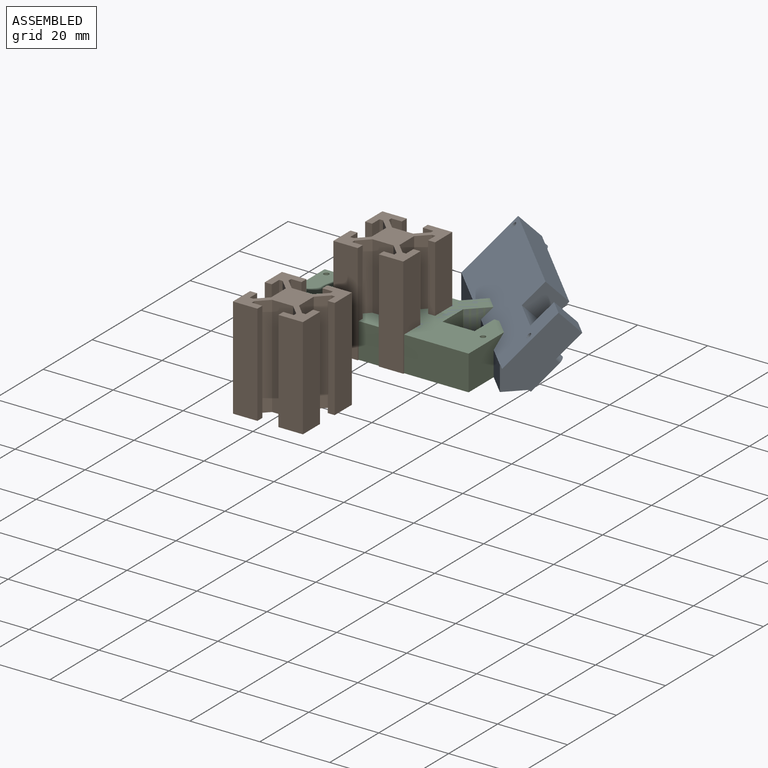
[diagram: assembled view]
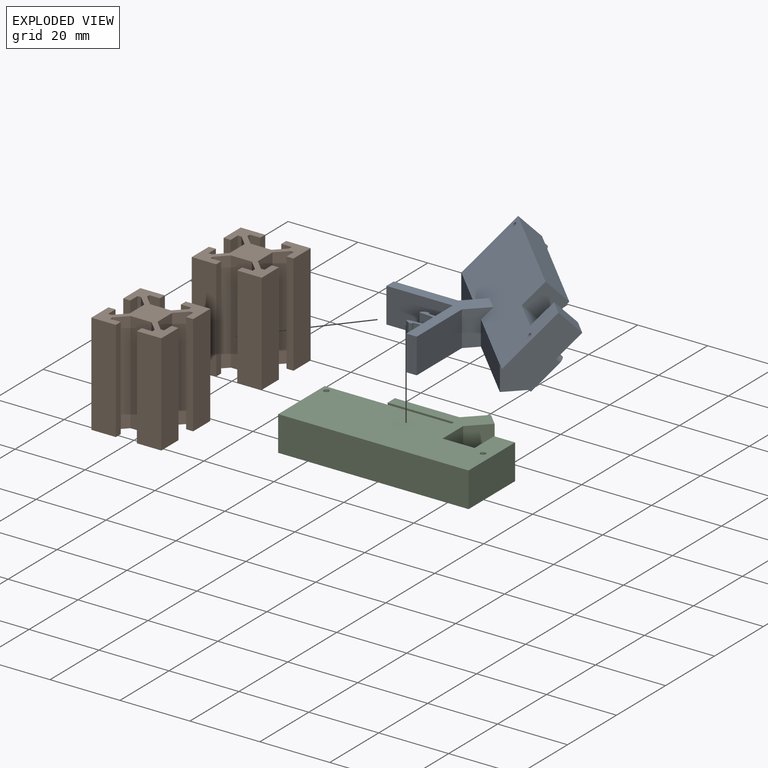
[diagram: exploded view]
GUIDED TOUR — FREECAD ASSEMBLY "voroncameramount"

This assembly has 3 components, labeled P0..P2 below (a component is one placed body or linked part; the same part can appear more than once), held together by 0 modeled joints plus 3 derived contact edges. A joint is a constraint between two components; its type names the relative motion it leaves free:
  CONTACT — a derived adjacency edge — the two components touch in the source model (clearance under 2% of the assembly's diagonal); it is measured from the geometry, not a modeled constraint.
Axis/direction vectors are unit vectors and 'through' points are millimeter coordinates, both in the assembly's world frame.

MATES
  1. CONTACT "contact_0_1": P0 <-> P1, contact direction (-0.454, -0.885, 0.105) through (8.00, -3.04, 0.00) mm (derived from contact, not a modeled constraint)
  2. CONTACT "contact_0_2": P0 <-> P2, contact direction (0.000, 0.000, -1.000) through (-8.78, 13.19, 0.00) mm (derived from contact, not a modeled constraint)
  3. CONTACT "contact_1_2": P1 <-> P2, contact direction (0.000, 1.000, 0.000) through (3.05, 10.14, 0.00) mm (derived from contact, not a modeled constraint)

ASSEMBLY ORDER
  1. P0 — the base component [order heuristic]
  2. P2 — core [order heuristic]
  3. P1 [order verified]
Order-tag legend:
  [order verified] — this step's position reverses a verified removal order: the component was checked to insert without passing through the ones already placed.
  [order heuristic] — the first 2 components form the assembly's core: parts whose collision-free extraction could not be verified, listed in mate-graph order.

Of the 3 components, 2 carry a construction recipe — the FreeCAD feature program (sketches with constraints, then the solid features that consume them) that regenerates the part from scratch, quoted from this document or from the linked companion document it references; the rest are supplied as boundary geometry only. The tour below walks the components in assembly order: each is shown spotlighted twice — in the assembled view, then in the exploded view, where a leader line traces a displaced component back to its assembled socket (components that stay in place when exploded have no leader line; saturated green if recipe-attached, orange if geometry-only; every other component desaturated gray) — followed by its recipe or geometry summary and the mates that hold it.
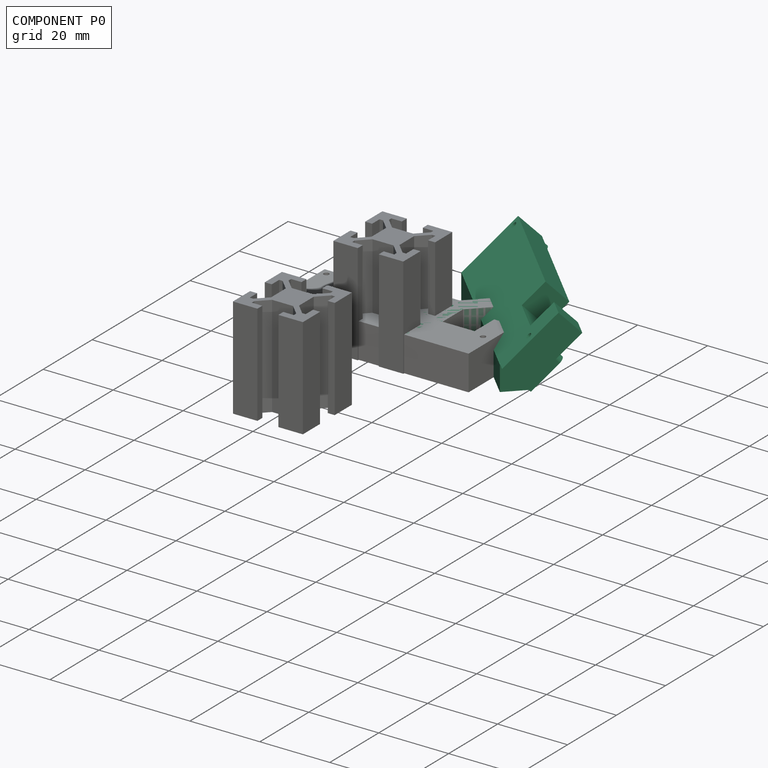
[diagram: component P0 — assembled]
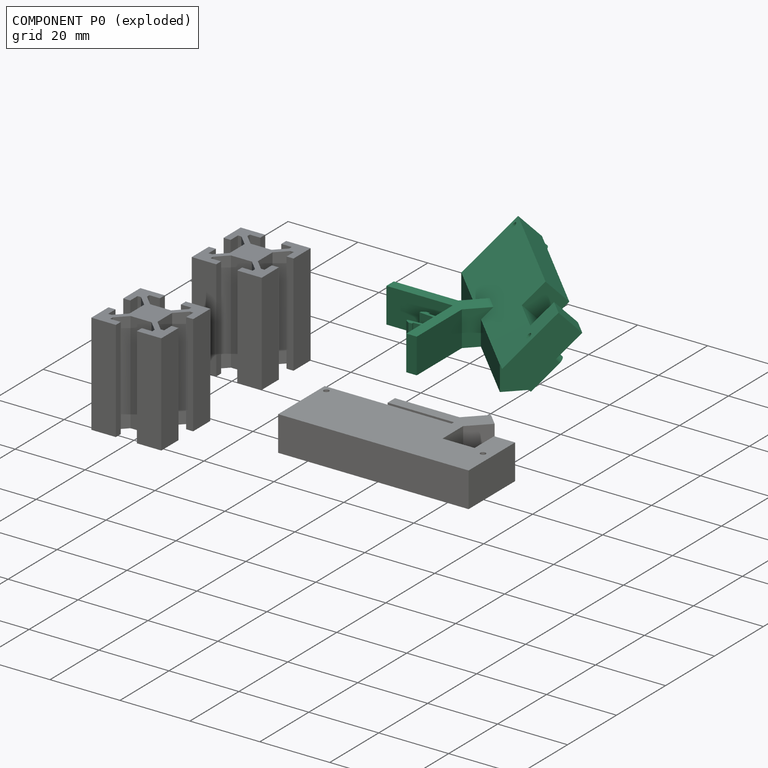
[diagram: component P0 — exploded]
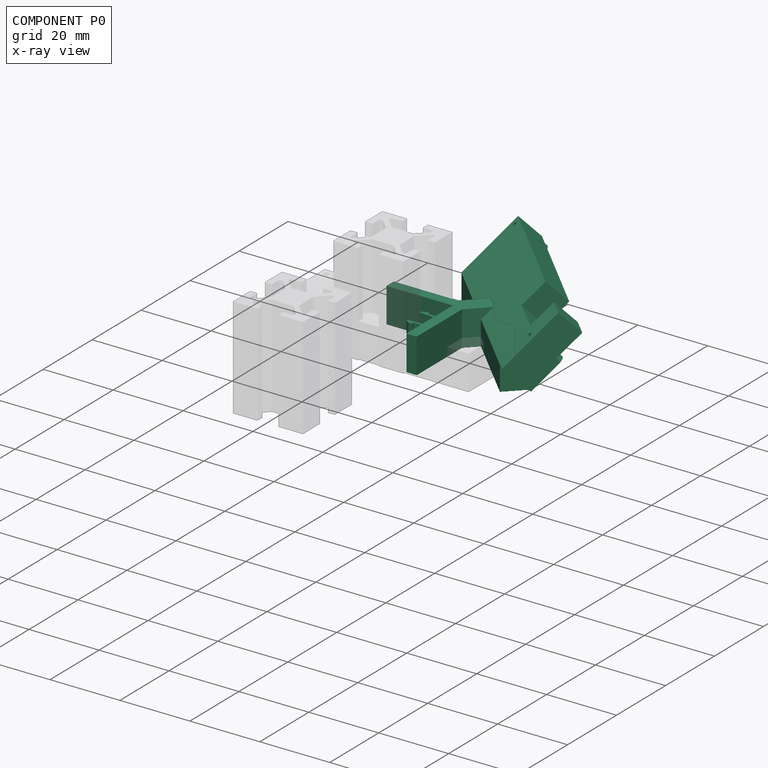
[diagram: component P0 — x-ray view]
COMPONENT P0 — recipe-attached ("Mount", modeled in this document).
Held by: resting contact with P1 (derived edge); resting contact with P2 (derived edge).
Construction recipe (the document's own serialized feature program — sketch geometry with constraints, then the solid features built on it; lengths are millimeters unless a unit is written):

FEATURE [Sketcher::SketchObject] Sketch
  FullyConstrained = true
  MapMode = 5
  Support = -> [XY_Plane001]
  TreeRank = 0
  sketch-geometry (11):
    g0: LineSegment StartX=-26.02 StartY=-9.66 StartZ=0 EndX=25.98 EndY=-9.66 EndZ=0
    g1: LineSegment StartX=25.98 StartY=-9.66 StartZ=0 EndX=25.98 EndY=9.34 EndZ=0
    g2: LineSegment [constr] StartX=25.98 StartY=9.34 StartZ=0 EndX=-26.02 EndY=9.34 EndZ=0
    g3: LineSegment StartX=-26.02 StartY=9.34 StartZ=0 EndX=-26.02 EndY=-9.66 EndZ=0
    g4: LineSegment StartX=-26.02 StartY=9.34 StartZ=0 EndX=8.48 EndY=9.34 EndZ=0
    g5: LineSegment StartX=8.48 StartY=9.34 StartZ=0 EndX=8.48 EndY=1.34 EndZ=0
    g6: LineSegment StartX=8.48 StartY=1.34 StartZ=0 EndX=19.98 EndY=1.34 EndZ=0
    g7: LineSegment StartX=19.98 StartY=1.34 StartZ=0 EndX=19.98 EndY=9.34 EndZ=0
    g8: LineSegment StartX=19.98 StartY=9.34 StartZ=0 EndX=25.98 EndY=9.34 EndZ=0
    g9: Circle CenterX=-24.19 CenterY=7.43 CenterZ=0 NormalX=0 NormalY=0 NormalZ=1 AngleXU=0 Radius=0.75
    g10: Circle CenterX=23.34 CenterY=0 CenterZ=0 NormalX=0 NormalY=0 NormalZ=1 AngleXU=0 Radius=0.75
  constraints (32):
    c: Coincident(g0,g1)
    c: Coincident(g1,g2)
    c: Coincident(g2,g3)
    c: Coincident(g3,g0)
    c: Horizontal(g0)
    c: Horizontal(g2)
    c: Vertical(g1)
    c: Vertical(g3)
    c: DistanceX(g2,g1) = 52
    c: DistanceY(g0,g2) = 19
    c: DistanceY(g-1,g2) = 9.34
    c: DistanceX(g2,g-1) = 26.02
    c: Coincident(g3,g4)
    c: PointOnObject(g4,g2)
    c: Coincident(g4,g5)
    c: Vertical(g5)
    c: Coincident(g5,g6)
    c: Horizontal(g6)
    c: Coincident(g6,g7)
    c: PointOnObject(g7,g2)
    c: Vertical(g7)
    c: Coincident(g8,g7)
    c: Coincident(g8,g1)
    c: DistanceX(g5,g6) = 11.5
    c: DistanceY(g5,g4) = 8
    c: DistanceX(g7,g1) = 6
    c: PointOnObject(g10,g-1)
    c: Equal(g9,g10)
    c: Diameter(g9) = 1.5
    c: DistanceX(g3,g9) = 1.83
    c: DistanceY(g9,g3) = 1.91
    c: DistanceX(g10,g0) = 2.64
FEATURE [PartDesign::Body] Body  label="sketckonlybody"
  AutoGroupSolids = false
  ExportMode = 0
  Group = -> [Sketch]
  Origin = -> Origin001
  TreeRank = 0
  _ExportChildren = -> [Sketch]
  _GroupVersion = 1
FEATURE [Sketcher::SketchObject] Sketch007
  FullyConstrained = true
  MapMode = 5
  Support = -> [XY_Plane002]
  TreeRank = 0
  expr: Constraints[10] = Sketch001.Constraints[10]
  expr: Constraints[22] = Sketch001.Constraints[22]
  expr: Constraints[23] = Sketch001.Constraints[23]
  expr: Constraints[24] = Sketch001.Constraints[24]
  expr: Constraints[27] = Sketch001.Constraints[27]
  expr: Constraints[28] = Sketch001.Constraints[28]
  expr: Constraints[29] = Sketch001.Constraints[29]
  expr: Constraints[30] = Sketch001.Constraints[30]
  expr: Constraints[31] = Sketch001.Constraints[31]
  expr: Constraints[8] = Sketch001.Constraints[8]
  expr: Constraints[9] = Sketch001.Constraints[9]
  sketch-geometry (35):
    g0: LineSegment [constr] StartX=-26.02 StartY=-9.66 StartZ=0 EndX=28.45 EndY=-9.66 EndZ=0
    g1: LineSegment [constr] StartX=28.45 StartY=-9.66 StartZ=0 EndX=28.45 EndY=9.34 EndZ=0
    g2: LineSegment [constr] StartX=28.45 StartY=9.34 StartZ=0 EndX=-26.02 EndY=9.34 EndZ=0
    g3: LineSegment [constr] StartX=-26.02 StartY=9.34 StartZ=0 EndX=-26.02 EndY=-9.66 EndZ=0
    g4: LineSegment [constr] StartX=-26.02 StartY=9.34 StartZ=0 EndX=10.95 EndY=9.34 EndZ=0
    g5: LineSegment [constr] StartX=10.95 StartY=9.34 StartZ=0 EndX=10.95 EndY=1.34 EndZ=0
    g6: LineSegment [constr] StartX=10.95 StartY=1.34 StartZ=0 EndX=22.45 EndY=1.34 EndZ=0
    g7: LineSegment [constr] StartX=22.45 StartY=1.34 StartZ=0 EndX=22.45 EndY=9.34 EndZ=0
    g8: LineSegment [constr] StartX=22.45 StartY=9.34 StartZ=0 EndX=28.45 EndY=9.34 EndZ=0
    g9: Circle [constr] CenterX=-24.19 CenterY=7.43 CenterZ=0 NormalX=0 NormalY=0 NormalZ=1 AngleXU=0 Radius=0.75
    g10: Circle [constr] CenterX=25.81 CenterY=0 CenterZ=0 NormalX=0 NormalY=0 NormalZ=1 AngleXU=0 Radius=0.75
    g11: LineSegment [constr] StartX=-26.02 StartY=9.34 StartZ=0 EndX=28.45 EndY=9.34 EndZ=0
    g12: LineSegment [constr] StartX=28.45 StartY=9.34 StartZ=0 EndX=28.45 EndY=-9.66 EndZ=0
    g13: LineSegment [constr] StartX=28.45 StartY=-9.66 StartZ=0 EndX=-26.02 EndY=-9.66 EndZ=0
    g14: LineSegment StartX=-26.02 StartY=-9.66 StartZ=0 EndX=-26.02 EndY=9.34 EndZ=0
    g15: LineSegment StartX=-26.02 StartY=9.34 StartZ=0 EndX=28.45 EndY=9.34 EndZ=0
    g16: Circle [constr] CenterX=25.81 CenterY=0 CenterZ=0 NormalX=0 NormalY=0 NormalZ=1 AngleXU=0 Radius=1.4
    g17: Circle [constr] CenterX=-24.19 CenterY=7.43 CenterZ=0 NormalX=0 NormalY=0 NormalZ=1 AngleXU=0 Radius=1.4
    g18: LineSegment [constr] StartX=-26.02 StartY=-9.66 StartZ=0 EndX=-26.02 EndY=9.34 EndZ=0
    g19: LineSegment [constr] StartX=-26.02 StartY=9.34 StartZ=0 EndX=28.45 EndY=9.34 EndZ=0
    g20: LineSegment [constr] StartX=28.45 StartY=9.34 StartZ=0 EndX=28.45 EndY=-9.66 EndZ=0
    g21: LineSegment [constr] StartX=28.45 StartY=-9.66 StartZ=0 EndX=27.21 EndY=-9.66 EndZ=0
    g22: LineSegment StartX=27.21 StartY=-9.66 StartZ=0 EndX=27.21 EndY=0 EndZ=0
    g23: LineSegment StartX=24.41 StartY=2e-16 StartZ=0 EndX=24.41 EndY=-9.66 EndZ=0
    g24: LineSegment [constr] StartX=24.41 StartY=-9.66 StartZ=0 EndX=-22.79 EndY=-9.66 EndZ=0
    g25: LineSegment StartX=-22.79 StartY=-9.66 StartZ=0 EndX=-22.79 EndY=7.43 EndZ=0
    g26: LineSegment StartX=-25.59 StartY=7.43 StartZ=0 EndX=-25.59 EndY=-9.66 EndZ=0
    g27: LineSegment [constr] StartX=-25.59 StartY=-9.66 StartZ=0 EndX=-26.02 EndY=-9.66 EndZ=0
    g28: LineSegment [constr] StartX=-26.02 StartY=-9.66 StartZ=0 EndX=-26.02 EndY=9.34 EndZ=0
    g29: ArcOfCircle CenterX=-24.19 CenterY=7.43 CenterZ=0 NormalX=0 NormalY=0 NormalZ=1 AngleXU=0 Radius=1.4 StartAngle=1e-16 EndAngle=3.14159
    g30: ArcOfCircle CenterX=25.81 CenterY=0 CenterZ=0 NormalX=0 NormalY=0 NormalZ=1 AngleXU=0 Radius=1.4 StartAngle=0 EndAngle=3.14159
    g31: LineSegment StartX=-26.02 StartY=-9.66 StartZ=0 EndX=-25.59 EndY=-9.66 EndZ=0
    g32: LineSegment StartX=-22.79 StartY=-9.66 StartZ=0 EndX=24.41 EndY=-9.66 EndZ=0
    g33: LineSegment StartX=27.21 StartY=-9.66 StartZ=0 EndX=28.45 EndY=-9.66 EndZ=0
    g34: LineSegment StartX=28.45 StartY=9.34 StartZ=0 EndX=28.45 EndY=-9.66 EndZ=0
  constraints (88):
    c: Coincident(g0,g1)
    c: Coincident(g1,g2)
    c: Coincident(g2,g3)
    c: Coincident(g3,g0)
    c: Horizontal(g0)
    c: Horizontal(g2)
    c: Vertical(g1)
    c: Vertical(g3)
    c: DistanceY(g0,g2) = 19
    c: DistanceY(g-1,g2) = 9.34
    c: DistanceX(g2,g-1) = 26.02
    c: Coincident(g3,g4)
    c: PointOnObject(g4,g2)
    c: Coincident(g4,g5)
    c: Vertical(g5)
    c: Coincident(g5,g6)
    c: Horizontal(g6)
    c: Coincident(g6,g7)
    c: PointOnObject(g7,g2)
    c: Vertical(g7)
    c: Coincident(g8,g7)
    c: Coincident(g8,g1)
    c: DistanceX(g5,g6) = 11.5
    c: DistanceY(g5,g4) = 8
    c: DistanceX(g7,g1) = 6
    c: PointOnObject(g10,g-1)
    c: Equal(g9,g10)
    c: Diameter(g9) = 1.5
    c: DistanceX(g3,g9) = 1.83
    c: DistanceY(g9,g3) = 1.91
    c: DistanceX(g10,g0) = 2.64
    c: DistanceX(g9,g10) = 50
    c: Coincident(g11,g12)
    c: Coincident(g12,g13)
    c: Coincident(g13,g14)
    c: Coincident(g14,g11)
    c: Horizontal(g13)
    c: Vertical(g12)
    c: Coincident(g11,g2)
    c: Coincident(g11,g15)
    c: Coincident(g16,g10)
    c: Coincident(g17,g9)
    c: Equal(g17,g16)
    c: Diameter(g17) = 2.8
    c: Coincident(g13,g18)
    c: Coincident(g18,g11)
    c: Vertical(g18)
    c: Coincident(g18,g19)
    c: Coincident(g19,g11)
    c: Coincident(g19,g20)
    c: Coincident(g20,g12)
    c: Coincident(g20,g21)
    c: PointOnObject(g21,g0)
    c: Horizontal(g21)
    c: Coincident(g21,g22)
    c: Vertical(g22)
    c: Coincident(g23,g24)
    c: PointOnObject(g24,g0)
    c: Coincident(g24,g25)
    c: Vertical(g25)
    c: PointOnObject(g26,g0)
    c: Vertical(g26)
    c: Coincident(g26,g27)
    c: Coincident(g27,g13)
    c: Coincident(g27,g28)
    c: Coincident(g28,g11)
    c: Vertical(g23)
    c: Coincident(g15,g11)
    c: Tangent(g25,g17) = -1.5708
    c: Coincident(g1,g11)
    c: PointOnObject(g23,g16)
    c: Tangent(g26,g17) = -1.5708
    c: Horizontal(g24)
    c: Coincident(g29,g9)
    c: Coincident(g29,g25)
    c: Coincident(g29,g26)
    c: Tangent(g22,g16)
    c: Tangent(g30,g22) = -1.5708
    c: Tangent(g30,g23) = -1.5708
    c: Coincident(g31,g14)
    c: Coincident(g31,g26)
    c: Coincident(g32,g25)
    c: Coincident(g32,g23)
    c: Coincident(g33,g22)
    c: Coincident(g33,g0)
    c: Tangent(g23,g16,g23) = -1.5708
    c: Coincident(g34,g15)
    c: Coincident(g34,g33)
FEATURE [Sketcher::SketchObject] Sketch002
  FullyConstrained = true
  MapMode = 5
  Support = -> [XY_Plane012]
  TreeRank = 65
  sketch-geometry (4):
    g0: LineSegment StartX=26 StartY=0 StartZ=0 EndX=-26.05 EndY=0 EndZ=0
    g1: LineSegment StartX=-26.05 StartY=0 StartZ=0 EndX=-26.05 EndY=-7.2 EndZ=0
    g2: LineSegment StartX=-26.05 StartY=-7.2 StartZ=0 EndX=26 EndY=-7.2 EndZ=0
    g3: LineSegment StartX=26 StartY=-7.2 StartZ=0 EndX=26 EndY=0 EndZ=0
  constraints (12):
    c: Coincident(g0,g1)
    c: Coincident(g1,g2)
    c: Coincident(g2,g3)
    c: Coincident(g3,g0)
    c: Horizontal(g0)
    c: Horizontal(g2)
    c: Vertical(g1)
    c: Vertical(g3)
    c: PointOnObject(g0,g-1)
    c: DistanceX(g1,g2) = 52.05
    c: DistanceY(g2,g0) = 7.2
    c: DistanceX(g0,g-1) = 26.05
FEATURE [PartDesign::Pad] Pad001
  ClaimChildren = false
  Direction = (1,1,1)
  Fit = 0
  FitJoin = 0
  InnerFit = 0
  InnerFitJoin = 0
  InnerTaperAngle = 0
  InnerTaperAngleRev = 0
  Length = 7.1
  Length2 = 100
  NewSolid = false
  Profile = -> Sketch002
  Suppress = false
  TreeRank = 66
  Type = 0
  _ProfileBasedVersion = 0
FEATURE [PartDesign::Body] Body002  label="FaceArmJoint"
  AutoGroupSolids = false
  ExportMode = 0
  Group = -> [Sketch002,Pad001]
  Origin = -> Origin003
  Placement = pos=(21.07,18.1411,1e-15) rot=(0,0,-1;0.785398rad)
  Tip = -> Pad001
  TreeRank = 0
  _ExportChildren = -> [Pad001]
  _GroupVersion = 1
FEATURE [Sketcher::SketchObject] Sketch005
  FullyConstrained = true
  MapMode = 5
  Support = -> [XY_Plane013]
  TreeRank = 75
  sketch-geometry (7):
    g0: LineSegment StartX=0 StartY=0 StartZ=0 EndX=0 EndY=0.75 EndZ=0
    g1: LineSegment StartX=0 StartY=0.75 StartZ=0 EndX=-2.47 EndY=0.75 EndZ=0
    g2: LineSegment StartX=-2.47 StartY=0.75 StartZ=0 EndX=-2.47 EndY=1.25 EndZ=0
    g3: LineSegment StartX=-2.47 StartY=1.25 StartZ=0 EndX=-3.47 EndY=1.25 EndZ=0
    g4: LineSegment StartX=-3.47 StartY=1.25 StartZ=0 EndX=-4.5 EndY=0.5 EndZ=0
    g5: LineSegment StartX=-4.5 StartY=0.5 StartZ=0 EndX=-4.5 EndY=0 EndZ=0
    g6: LineSegment StartX=-4.5 StartY=0 StartZ=0 EndX=0 EndY=0 EndZ=0
  constraints (20):
    c: Horizontal(g6)
    c: Coincident(g6,g0)
    c: Vertical(g0)
    c: Vertical(g5)
    c: Vertical(g2)
    c: Horizontal(g1)
    c: Coincident(g2,g1)
    c: Coincident(g3,g2)
    c: Coincident(g5,g6)
    c: Coincident(g5,g4)
    c: Coincident(g3,g4)
    c: Coincident(g0,g1)
    c: Horizontal(g3)
    c: Coincident(g-1,g0)
    c: DistanceX(g5,g0) = 4.5
    c: DistanceX(g1,g0) = 2.47
    c: DistanceX(g3,g2) = 1
    c: DistanceY(g0,g0) = 0.75
    c: DistanceY(g1,g2) = 0.5
    c: DistanceY(g5,g4) = 0.5
FEATURE [PartDesign::Pad] Pad003
  ClaimChildren = false
  Direction = (1,1,1)
  Fit = 0
  FitJoin = 0
  InnerFit = 0
  InnerFitJoin = 0
  InnerTaperAngle = 0
  InnerTaperAngleRev = 0
  Length = 10
  Length2 = 100
  NewSolid = false
  Profile = -> Sketch005
  Suppress = false
  TreeRank = 76
  Type = 0
  _ProfileBasedVersion = 0
FEATURE [PartDesign::Body] Body004  label="tooth0"
  AutoGroupSolids = false
  ExportMode = 0
  Group = -> [Sketch005,Pad003]
  Origin = -> Origin006
  Placement = pos=(10.4445,2.16081,0) rot=(0,0,1;6.21337rad)
  Tip = -> Pad003
  TreeRank = 0
  _ExportChildren = -> [Pad003]
  _GroupVersion = 1
FEATURE [Sketcher::SketchObject] Sketch006
  FullyConstrained = true
  MapMode = 5
  Support = -> [XY_Plane014]
  TreeRank = 85
  sketch-geometry (13):
    g0: LineSegment StartX=10.29 StartY=-8.71 StartZ=0 EndX=10.29 EndY=10.29 EndZ=0
    g1: LineSegment StartX=-8.68 StartY=10.29 StartZ=0 EndX=-8.68 EndY=13.29 EndZ=0
    g2: LineSegment StartX=-8.68 StartY=13.29 StartZ=0 EndX=9.7695 EndY=13.29 EndZ=0
    g3: LineSegment StartX=9.7695 StartY=13.29 StartZ=0 EndX=15.0728 EndY=18.5933 EndZ=0
    g4: LineSegment StartX=15.0728 StartY=18.5933 StartZ=0 EndX=18.5933 EndY=15.0428 EndZ=0
    g5: LineSegment StartX=18.5933 StartY=15.0428 StartZ=0 EndX=13.29 EndY=9.7395 EndZ=0
    g6: LineSegment StartX=13.29 StartY=9.7395 StartZ=0 EndX=13.29 EndY=-8.71 EndZ=0
    g7: LineSegment StartX=13.29 StartY=-8.71 StartZ=0 EndX=10.29 EndY=-8.71 EndZ=0
    g8: LineSegment StartX=-8.68 StartY=10.29 StartZ=0 EndX=-2.68 EndY=10.29 EndZ=0
    g9: LineSegment StartX=-2.68 StartY=10.29 StartZ=0 EndX=-2.68 EndY=10.29 EndZ=0
    g10: LineSegment StartX=-2.68 StartY=10.29 StartZ=0 EndX=3.1 EndY=10.29 EndZ=0
    g11: LineSegment StartX=3.1 StartY=10.29 StartZ=0 EndX=3.1 EndY=10.29 EndZ=0
    g12: LineSegment StartX=3.1 StartY=10.29 StartZ=0 EndX=10.29 EndY=10.29 EndZ=0
  constraints (39):
    c: Vertical(g0)
    c: Coincident(g1,g2)
    c: Horizontal(g2)
    c: Coincident(g2,g3)
    c: Coincident(g3,g4)
    c: Coincident(g4,g5)
    c: Coincident(g5,g6)
    c: Vertical(g6)
    c: Coincident(g6,g7)
    c: Coincident(g7,g0)
    c: Horizontal(g7)
    c: DistanceY(g0,g0) = 19
    c: Vertical(g1)
    c: Equal(g2,g6)
    c: DistanceX(g0,g6) = 3
    c: Equal(g1,g7)
    c: Angle(g6,g5) = 2.35619
    c: Parallel(g5,g3)
    c: DistanceX(g-1,g0) = 10.29
    c: DistanceY(g-1,g1) = 10.29
    c: Distance(g5) = 7.5
    c: Equal(g5,g3)
    c: Distance(g4) = 5
    c: Coincident(g1,g8)
    c: Horizontal(g8)
    c: Coincident(g8,g9)
    c: Coincident(g9,g10)
    c: Horizontal(g10)
    c: Coincident(g10,g11)
    c: Coincident(g11,g12)
    c: Coincident(g12,g0)
    c: Horizontal(g12)
    c: DistanceX(g1,g8) = 6
    c: DistanceX(g11,g0) = 7.19
    c: DistanceY(g9,g8) = 0
    c: DistanceX(g9,g10) = 5.78
    c: Vertical(g11)
    c: Vertical(g9)
    c: Equal(g11,g9)
FEATURE [PartDesign::Pad] Pad004
  ClaimChildren = false
  Direction = (1,1,1)
  Fit = 0
  FitJoin = 0
  InnerFit = 0
  InnerFitJoin = 0
  InnerTaperAngle = 0
  InnerTaperAngleRev = 0
  Length = 10
  Length2 = 100
  NewSolid = false
  Profile = -> Sketch006
  Suppress = false
  TreeRank = 86
  Type = 0
  _ProfileBasedVersion = 0
FEATURE [PartDesign::Body] Body005  label="extrusionJoint"
  AutoGroupSolids = false
  ExportMode = 0
  Group = -> [Sketch006,Pad004]
  Origin = -> Origin008
  Placement = pos=(-0.2,-0.2,0) rot=(0,0,1;0rad)
  Tip = -> Pad004
  TreeRank = 0
  _ExportChildren = -> [Pad004]
  _GroupVersion = 1
FEATURE [Sketcher::SketchObject] Sketch001
  FullyConstrained = true
  MapMode = 5
  Support = -> [XY_Plane015]
  TreeRank = 95
  expr: Constraints[10] = Sketch.Constraints[11]
  expr: Constraints[22] = Sketch.Constraints[23]
  expr: Constraints[23] = Sketch.Constraints[24]
  expr: Constraints[24] = Sketch.Constraints[25]
  expr: Constraints[27] = Sketch.Constraints[28]
  expr: Constraints[28] = Sketch.Constraints[29]
  expr: Constraints[29] = Sketch.Constraints[30]
  expr: Constraints[30] = Sketch.Constraints[31]
  expr: Constraints[8] = Sketch.Constraints[9]
  expr: Constraints[9] = Sketch.Constraints[10]
  sketch-geometry (11):
    g0: LineSegment StartX=-26.02 StartY=-9.66 StartZ=0 EndX=28.45 EndY=-9.66 EndZ=0
    g1: LineSegment StartX=28.45 StartY=-9.66 StartZ=0 EndX=28.45 EndY=9.34 EndZ=0
    g2: LineSegment [constr] StartX=28.45 StartY=9.34 StartZ=0 EndX=-26.02 EndY=9.34 EndZ=0
    g3: LineSegment StartX=-26.02 StartY=9.34 StartZ=0 EndX=-26.02 EndY=-9.66 EndZ=0
    g4: LineSegment StartX=-26.02 StartY=9.34 StartZ=0 EndX=10.95 EndY=9.34 EndZ=0
    g5: LineSegment StartX=10.95 StartY=9.34 StartZ=0 EndX=10.95 EndY=1.34 EndZ=0
    g6: LineSegment StartX=10.95 StartY=1.34 StartZ=0 EndX=22.45 EndY=1.34 EndZ=0
    g7: LineSegment StartX=22.45 StartY=1.34 StartZ=0 EndX=22.45 EndY=9.34 EndZ=0
    g8: LineSegment StartX=22.45 StartY=9.34 StartZ=0 EndX=28.45 EndY=9.34 EndZ=0
    g9: Circle CenterX=-24.19 CenterY=7.43 CenterZ=0 NormalX=0 NormalY=0 NormalZ=1 AngleXU=0 Radius=0.75
    g10: Circle CenterX=25.81 CenterY=0 CenterZ=0 NormalX=0 NormalY=0 NormalZ=1 AngleXU=0 Radius=0.75
  constraints (32):
    c: Coincident(g0,g1)
    c: Coincident(g1,g2)
    c: Coincident(g2,g3)
    c: Coincident(g3,g0)
    c: Horizontal(g0)
    c: Horizontal(g2)
    c: Vertical(g1)
    c: Vertical(g3)
    c: DistanceY(g0,g2) = 19
    c: DistanceY(g-1,g2) = 9.34
    c: DistanceX(g2,g-1) = 26.02
    c: Coincident(g3,g4)
    c: PointOnObject(g4,g2)
    c: Coincident(g4,g5)
    c: Vertical(g5)
    c: Coincident(g5,g6)
    c: Horizontal(g6)
    c: Coincident(g6,g7)
    c: PointOnObject(g7,g2)
    c: Vertical(g7)
    c: Coincident(g8,g7)
    c: Coincident(g8,g1)
    c: DistanceX(g5,g6) = 11.5
    c: DistanceY(g5,g4) = 8
    c: DistanceX(g7,g1) = 6
    c: PointOnObject(g10,g-1)
    c: Equal(g9,g10)
    c: Diameter(g9) = 1.5
    c: DistanceX(g3,g9) = 1.83
    c: DistanceY(g9,g3) = 1.91
    c: DistanceX(g10,g0) = 2.64
    c: DistanceX(g9,g10) = 50
FEATURE [PartDesign::Pad] Pad
  ClaimChildren = false
  Direction = (1,1,1)
  Fit = 0
  FitJoin = 0
  InnerFit = 0
  InnerFitJoin = 0
  InnerTaperAngle = 0
  InnerTaperAngleRev = 0
  Length = 10
  Length2 = 100
  NewSolid = false
  Profile = -> Sketch001
  Suppress = false
  TreeRank = 96
  Type = 0
  _ProfileBasedVersion = 0
FEATURE [PartDesign::Pocket] Pocket001
  BaseFeature = -> Pad
  ClaimChildren = false
  Fit = 0
  FitJoin = 0
  InnerFit = 0
  InnerFitJoin = 0
  InnerTaperAngle = 0
  InnerTaperAngleRev = 0
  Length = 5
  Length2 = 100
  Linearize = true
  NewSolid = false
  Profile = -> Sketch007
  Suppress = false
  TreeRank = 54
  Type = 0
  _ProfileBasedVersion = 1
FEATURE [PartDesign::Pocket] Pocket002
  BaseFeature = -> Pocket001
  ClaimChildren = false
  Fit = 0
  FitJoin = 0
  InnerFit = 0
  InnerFitJoin = 0
  InnerTaperAngle = 0
  InnerTaperAngleRev = 0
  Length = 2
  Length2 = 100
  Linearize = true
  NewSolid = false
  Profile = -> Sketch007
  Reversed = true
  Suppress = false
  TreeRank = 55
  Type = 0
  _ProfileBasedVersion = 1
FEATURE [PartDesign::Body] Body001  label="CameraFace"
  AutoGroupSolids = false
  ExportMode = 0
  Group = -> [Sketch001,Pad,Sketch007,Pocket001,Pocket002]
  Origin = -> Origin002
  Placement = pos=(25.88,22.93,6.87071) rot=(0.678598,-0.281085,-0.678598;1.09606rad)
  Tip = -> Pocket002
  TreeRank = 0
  _ExportChildren = -> [Pad,Pocket001,Pocket002]
  _GroupVersion = 1
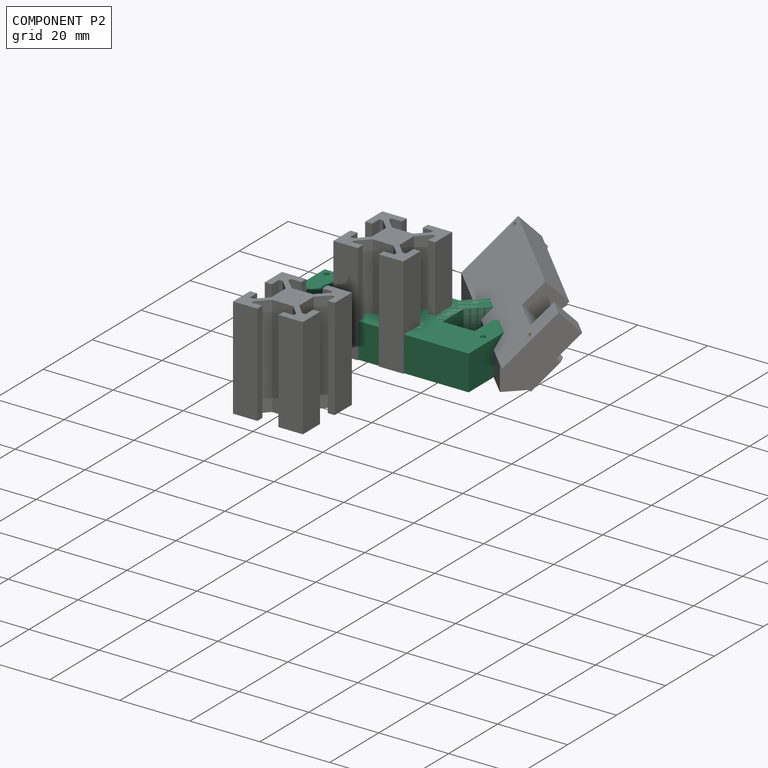
[diagram: component P2 — assembled]
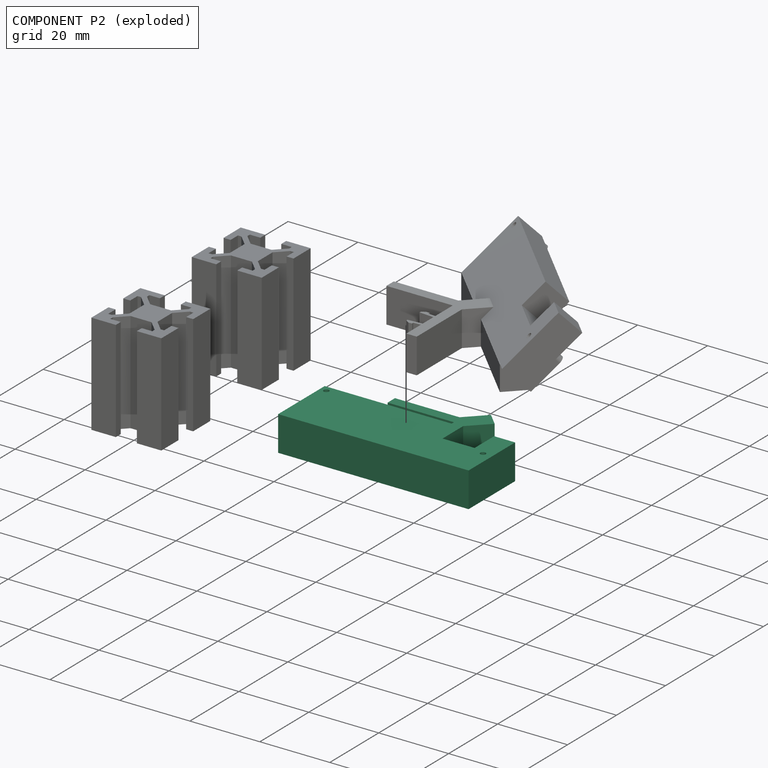
[diagram: component P2 — exploded]
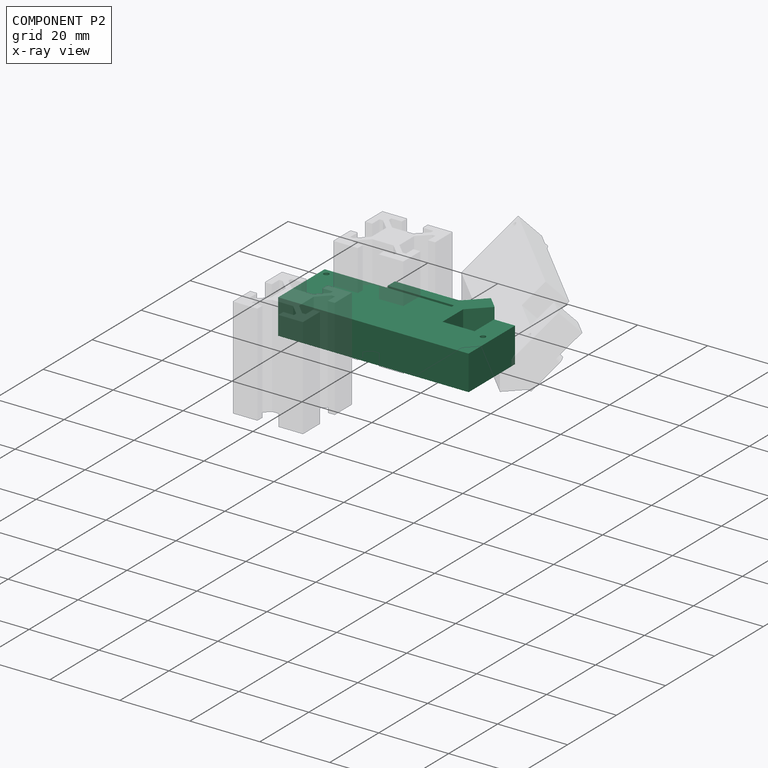
[diagram: component P2 — x-ray view]
COMPONENT P2 — recipe-attached ("Part", modeled in this document).
Held by: resting contact with P0 (derived edge); resting contact with P1 (derived edge).
Construction recipe (the document's own serialized feature program — sketch geometry with constraints, then the solid features built on it; lengths are millimeters unless a unit is written):

FEATURE [PartDesign::FeatureBase] BaseFeature
  NewSolid = false
  Suppress = false
  TreeRank = 56
FEATURE [PartDesign::Body] BaseFeatureBody
  AutoGroupSolids = false
  ExportMode = 0
  Group = -> [BaseFeature]
  Origin = -> Origin012
  Tip = -> BaseFeature
  TreeRank = 64
  _ExportChildren = -> [BaseFeature]
  _GroupVersion = 1
FEATURE [Sketcher::SketchObject] Sketch002
  FullyConstrained = true
  MapMode = 5
  Support = -> [XY_Plane012]
  TreeRank = 65
  sketch-geometry (4):
    g0: LineSegment StartX=26 StartY=0 StartZ=0 EndX=-26.05 EndY=0 EndZ=0
    g1: LineSegment StartX=-26.05 StartY=0 StartZ=0 EndX=-26.05 EndY=-7.2 EndZ=0
    g2: LineSegment StartX=-26.05 StartY=-7.2 StartZ=0 EndX=26 EndY=-7.2 EndZ=0
    g3: LineSegment StartX=26 StartY=-7.2 StartZ=0 EndX=26 EndY=0 EndZ=0
  constraints (12):
    c: Coincident(g0,g1)
    c: Coincident(g1,g2)
    c: Coincident(g2,g3)
    c: Coincident(g3,g0)
    c: Horizontal(g0)
    c: Horizontal(g2)
    c: Vertical(g1)
    c: Vertical(g3)
    c: PointOnObject(g0,g-1)
    c: DistanceX(g1,g2) = 52.05
    c: DistanceY(g2,g0) = 7.2
    c: DistanceX(g0,g-1) = 26.05
FEATURE [PartDesign::Pad] Pad001
  ClaimChildren = false
  Direction = (1,1,1)
  Fit = 0
  FitJoin = 0
  InnerFit = 0
  InnerFitJoin = 0
  InnerTaperAngle = 0
  InnerTaperAngleRev = 0
  Length = 7.1
  Length2 = 100
  NewSolid = false
  Profile = -> Sketch002
  Suppress = false
  TreeRank = 66
  Type = 0
  _ProfileBasedVersion = 0
FEATURE [PartDesign::Body] Pad001Body
  AutoGroupSolids = false
  ExportMode = 0
  Group = -> [Sketch002,Pad001]
  Origin = -> Origin013
  Tip = -> Pad001
  TreeRank = 74
  _ExportChildren = -> [Pad001]
  _GroupVersion = 1
FEATURE [Sketcher::SketchObject] Sketch005
  FullyConstrained = true
  MapMode = 5
  Support = -> [XY_Plane013]
  TreeRank = 75
  sketch-geometry (7):
    g0: LineSegment StartX=0 StartY=0 StartZ=0 EndX=0 EndY=0.75 EndZ=0
    g1: LineSegment StartX=0 StartY=0.75 StartZ=0 EndX=-2.47 EndY=0.75 EndZ=0
    g2: LineSegment StartX=-2.47 StartY=0.75 StartZ=0 EndX=-2.47 EndY=1.25 EndZ=0
    g3: LineSegment StartX=-2.47 StartY=1.25 StartZ=0 EndX=-3.47 EndY=1.25 EndZ=0
    g4: LineSegment StartX=-3.47 StartY=1.25 StartZ=0 EndX=-4.5 EndY=0.5 EndZ=0
    g5: LineSegment StartX=-4.5 StartY=0.5 StartZ=0 EndX=-4.5 EndY=0 EndZ=0
    g6: LineSegment StartX=-4.5 StartY=0 StartZ=0 EndX=0 EndY=0 EndZ=0
  constraints (20):
    c: Horizontal(g6)
    c: Coincident(g6,g0)
    c: Vertical(g0)
    c: Vertical(g5)
    c: Vertical(g2)
    c: Horizontal(g1)
    c: Coincident(g2,g1)
    c: Coincident(g3,g2)
    c: Coincident(g5,g6)
    c: Coincident(g5,g4)
    c: Coincident(g3,g4)
    c: Coincident(g0,g1)
    c: Horizontal(g3)
    c: Coincident(g-1,g0)
    c: DistanceX(g5,g0) = 4.5
    c: DistanceX(g1,g0) = 2.47
    c: DistanceX(g3,g2) = 1
    c: DistanceY(g0,g0) = 0.75
    c: DistanceY(g1,g2) = 0.5
    c: DistanceY(g5,g4) = 0.5
FEATURE [PartDesign::Pad] Pad003
  ClaimChildren = false
  Direction = (1,1,1)
  Fit = 0
  FitJoin = 0
  InnerFit = 0
  InnerFitJoin = 0
  InnerTaperAngle = 0
  InnerTaperAngleRev = 0
  Length = 10
  Length2 = 100
  NewSolid = false
  Profile = -> Sketch005
  Suppress = false
  TreeRank = 76
  Type = 0
  _ProfileBasedVersion = 0
FEATURE [PartDesign::Body] Pad003Body
  AutoGroupSolids = false
  ExportMode = 0
  Group = -> [Sketch005,Pad003]
  Origin = -> Origin014
  Tip = -> Pad003
  TreeRank = 84
  _ExportChildren = -> [Pad003]
  _GroupVersion = 1
FEATURE [Sketcher::SketchObject] Sketch006
  FullyConstrained = true
  MapMode = 5
  Support = -> [XY_Plane014]
  TreeRank = 85
  sketch-geometry (13):
    g0: LineSegment StartX=10.29 StartY=-8.71 StartZ=0 EndX=10.29 EndY=10.29 EndZ=0
    g1: LineSegment StartX=-8.68 StartY=10.29 StartZ=0 EndX=-8.68 EndY=13.29 EndZ=0
    g2: LineSegment StartX=-8.68 StartY=13.29 StartZ=0 EndX=9.7695 EndY=13.29 EndZ=0
    g3: LineSegment StartX=9.7695 StartY=13.29 StartZ=0 EndX=15.0728 EndY=18.5933 EndZ=0
    g4: LineSegment StartX=15.0728 StartY=18.5933 StartZ=0 EndX=18.5933 EndY=15.0428 EndZ=0
    g5: LineSegment StartX=18.5933 StartY=15.0428 StartZ=0 EndX=13.29 EndY=9.7395 EndZ=0
    g6: LineSegment StartX=13.29 StartY=9.7395 StartZ=0 EndX=13.29 EndY=-8.71 EndZ=0
    g7: LineSegment StartX=13.29 StartY=-8.71 StartZ=0 EndX=10.29 EndY=-8.71 EndZ=0
    g8: LineSegment StartX=-8.68 StartY=10.29 StartZ=0 EndX=-2.68 EndY=10.29 EndZ=0
    g9: LineSegment StartX=-2.68 StartY=10.29 StartZ=0 EndX=-2.68 EndY=10.29 EndZ=0
    g10: LineSegment StartX=-2.68 StartY=10.29 StartZ=0 EndX=3.1 EndY=10.29 EndZ=0
    g11: LineSegment StartX=3.1 StartY=10.29 StartZ=0 EndX=3.1 EndY=10.29 EndZ=0
    g12: LineSegment StartX=3.1 StartY=10.29 StartZ=0 EndX=10.29 EndY=10.29 EndZ=0
  constraints (39):
    c: Vertical(g0)
    c: Coincident(g1,g2)
    c: Horizontal(g2)
    c: Coincident(g2,g3)
    c: Coincident(g3,g4)
    c: Coincident(g4,g5)
    c: Coincident(g5,g6)
    c: Vertical(g6)
    c: Coincident(g6,g7)
    c: Coincident(g7,g0)
    c: Horizontal(g7)
    c: DistanceY(g0,g0) = 19
    c: Vertical(g1)
    c: Equal(g2,g6)
    c: DistanceX(g0,g6) = 3
    c: Equal(g1,g7)
    c: Angle(g6,g5) = 2.35619
    c: Parallel(g5,g3)
    c: DistanceX(g-1,g0) = 10.29
    c: DistanceY(g-1,g1) = 10.29
    c: Distance(g5) = 7.5
    c: Equal(g5,g3)
    c: Distance(g4) = 5
    c: Coincident(g1,g8)
    c: Horizontal(g8)
    c: Coincident(g8,g9)
    c: Coincident(g9,g10)
    c: Horizontal(g10)
    c: Coincident(g10,g11)
    c: Coincident(g11,g12)
    c: Coincident(g12,g0)
    c: Horizontal(g12)
    c: DistanceX(g1,g8) = 6
    c: DistanceX(g11,g0) = 7.19
    c: DistanceY(g9,g8) = 0
    c: DistanceX(g9,g10) = 5.78
    c: Vertical(g11)
    c: Vertical(g9)
    c: Equal(g11,g9)
FEATURE [PartDesign::Pad] Pad004
  ClaimChildren = false
  Direction = (1,1,1)
  Fit = 0
  FitJoin = 0
  InnerFit = 0
  InnerFitJoin = 0
  InnerTaperAngle = 0
  InnerTaperAngleRev = 0
  Length = 10
  Length2 = 100
  NewSolid = false
  Profile = -> Sketch006
  Suppress = false
  TreeRank = 86
  Type = 0
  _ProfileBasedVersion = 0
FEATURE [PartDesign::Body] Pad004Body
  AutoGroupSolids = false
  ExportMode = 0
  Group = -> [Sketch006,Pad004]
  Origin = -> Origin015
  Tip = -> Pad004
  TreeRank = 94
  _ExportChildren = -> [Pad004]
  _GroupVersion = 1
FEATURE [Sketcher::SketchObject] Sketch001
  FullyConstrained = true
  MapMode = 5
  Support = -> [XY_Plane015]
  TreeRank = 95
  expr: Constraints[10] = Sketch.Constraints[11]
  expr: Constraints[22] = Sketch.Constraints[23]
  expr: Constraints[23] = Sketch.Constraints[24]
  expr: Constraints[24] = Sketch.Constraints[25]
  expr: Constraints[27] = Sketch.Constraints[28]
  expr: Constraints[28] = Sketch.Constraints[29]
  expr: Constraints[29] = Sketch.Constraints[30]
  expr: Constraints[30] = Sketch.Constraints[31]
  expr: Constraints[8] = Sketch.Constraints[9]
  expr: Constraints[9] = Sketch.Constraints[10]
  sketch-geometry (11):
    g0: LineSegment StartX=-26.02 StartY=-9.66 StartZ=0 EndX=28.45 EndY=-9.66 EndZ=0
    g1: LineSegment StartX=28.45 StartY=-9.66 StartZ=0 EndX=28.45 EndY=9.34 EndZ=0
    g2: LineSegment [constr] StartX=28.45 StartY=9.34 StartZ=0 EndX=-26.02 EndY=9.34 EndZ=0
    g3: LineSegment StartX=-26.02 StartY=9.34 StartZ=0 EndX=-26.02 EndY=-9.66 EndZ=0
    g4: LineSegment StartX=-26.02 StartY=9.34 StartZ=0 EndX=10.95 EndY=9.34 EndZ=0
    g5: LineSegment StartX=10.95 StartY=9.34 StartZ=0 EndX=10.95 EndY=1.34 EndZ=0
    g6: LineSegment StartX=10.95 StartY=1.34 StartZ=0 EndX=22.45 EndY=1.34 EndZ=0
    g7: LineSegment StartX=22.45 StartY=1.34 StartZ=0 EndX=22.45 EndY=9.34 EndZ=0
    g8: LineSegment StartX=22.45 StartY=9.34 StartZ=0 EndX=28.45 EndY=9.34 EndZ=0
    g9: Circle CenterX=-24.19 CenterY=7.43 CenterZ=0 NormalX=0 NormalY=0 NormalZ=1 AngleXU=0 Radius=0.75
    g10: Circle CenterX=25.81 CenterY=0 CenterZ=0 NormalX=0 NormalY=0 NormalZ=1 AngleXU=0 Radius=0.75
  constraints (32):
    c: Coincident(g0,g1)
    c: Coincident(g1,g2)
    c: Coincident(g2,g3)
    c: Coincident(g3,g0)
    c: Horizontal(g0)
    c: Horizontal(g2)
    c: Vertical(g1)
    c: Vertical(g3)
    c: DistanceY(g0,g2) = 19
    c: DistanceY(g-1,g2) = 9.34
    c: DistanceX(g2,g-1) = 26.02
    c: Coincident(g3,g4)
    c: PointOnObject(g4,g2)
    c: Coincident(g4,g5)
    c: Vertical(g5)
    c: Coincident(g5,g6)
    c: Horizontal(g6)
    c: Coincident(g6,g7)
    c: PointOnObject(g7,g2)
    c: Vertical(g7)
    c: Coincident(g8,g7)
    c: Coincident(g8,g1)
    c: DistanceX(g5,g6) = 11.5
    c: DistanceY(g5,g4) = 8
    c: DistanceX(g7,g1) = 6
    c: PointOnObject(g10,g-1)
    c: Equal(g9,g10)
    c: Diameter(g9) = 1.5
    c: DistanceX(g3,g9) = 1.83
    c: DistanceY(g9,g3) = 1.91
    c: DistanceX(g10,g0) = 2.64
    c: DistanceX(g9,g10) = 50
FEATURE [PartDesign::Pad] Pad
  ClaimChildren = false
  Direction = (1,1,1)
  Fit = 0
  FitJoin = 0
  InnerFit = 0
  InnerFitJoin = 0
  InnerTaperAngle = 0
  InnerTaperAngleRev = 0
  Length = 10
  Length2 = 100
  NewSolid = false
  Profile = -> Sketch001
  Suppress = false
  TreeRank = 96
  Type = 0
  _ProfileBasedVersion = 0
FEATURE [PartDesign::Body] PadBody
  AutoGroupSolids = false
  ExportMode = 0
  Group = -> [Sketch001,Pad]
  Origin = -> Origin016
  Tip = -> Pad
  TreeRank = 104
  _ExportChildren = -> [Pad]
  _GroupVersion = 1
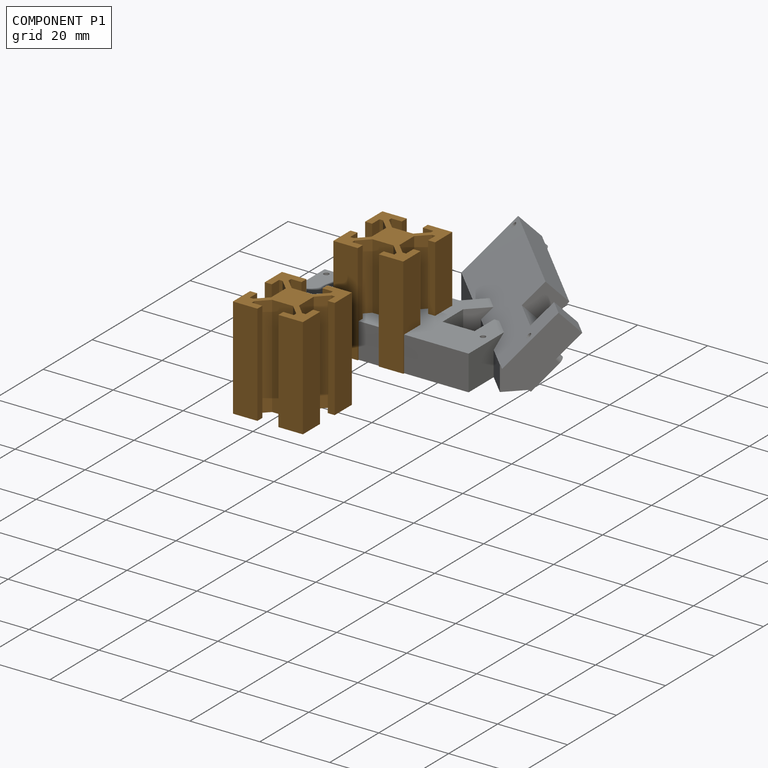
[diagram: component P1 — assembled]
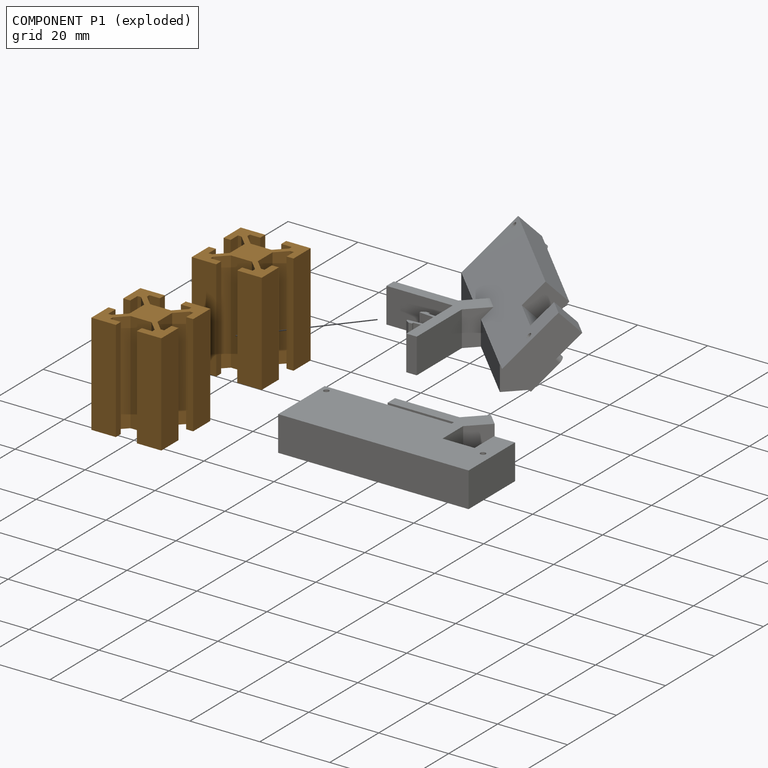
[diagram: component P1 — exploded]
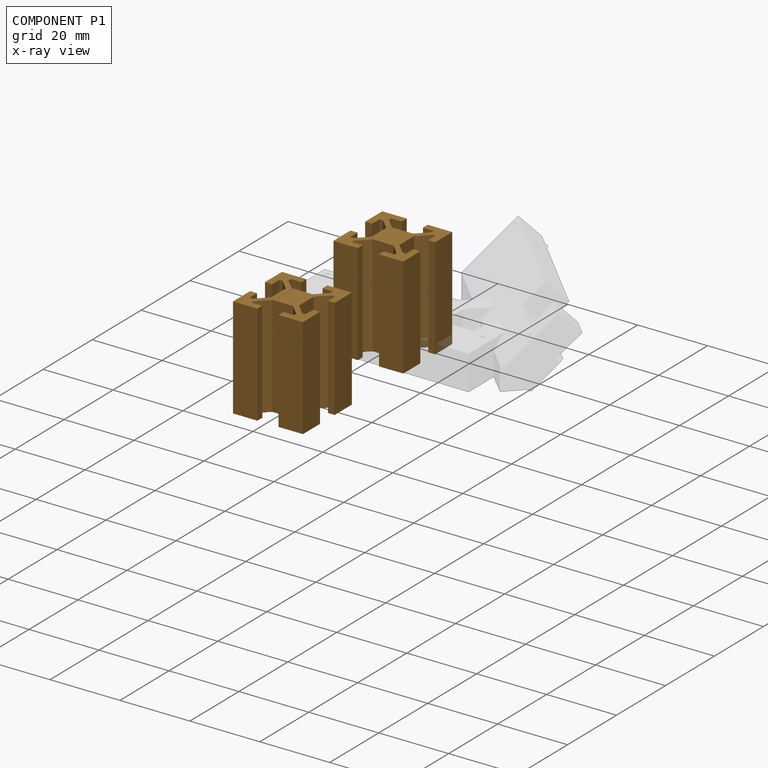
[diagram: component P1 — x-ray view]
COMPONENT P1 — geometry summary ("extrusion2020"; no construction recipe available for this part):
  bounding box: 61.0 x 29.0 x 20.0 mm
  tessellated surface: 890 triangles
  volume: 19888 mm^3 (56% of its bounding box)
  symmetry: 2-fold rotationally symmetric about the y axis; mirror-symmetric across its x mid-plane, z mid-plane
Held by: resting contact with P0 (derived edge); resting contact with P2 (derived edge).
PROVENANCE & LICENSES
Assembly and component geometry: a FreeCAD (.FCStd) document from a public repository crawl; components, placements and joints were extracted with FreeCAD and each solid tessellated.
Construction recipes: the document's own serialized feature recipes (and, for linked parts, the recipes of companion documents from the same project).
License: as declared in the source repository (recorded in the dataset sidecar).
Joints: native FreeCAD joints and A2plus constraints are mapped to standard mate types; edges marked 'derived from contact' connect touching components and are measured from the geometry, not modeled.
Verification: 2 of this assembly's 3 components carry a construction recipe (2 from this document itself); the rest are geometry-only. Every component's tessellation passed the extraction mesh gates (mesh-volume checksum against the B-rep where available, bounding-box inflation <= 2%).
Renders: orthographic iso camera (az 35 / el 25); the floor grid conveys scale (grid pitch printed in each image; no ruler). In the exploded view each component is displaced by its stored offset vector: the offsets alone carry the explosion direction (mate normal/axis signs are not orientation cues and do not encode it), and separation distances are assigned per mate-chain, not proportionally to assembly-order depth.
